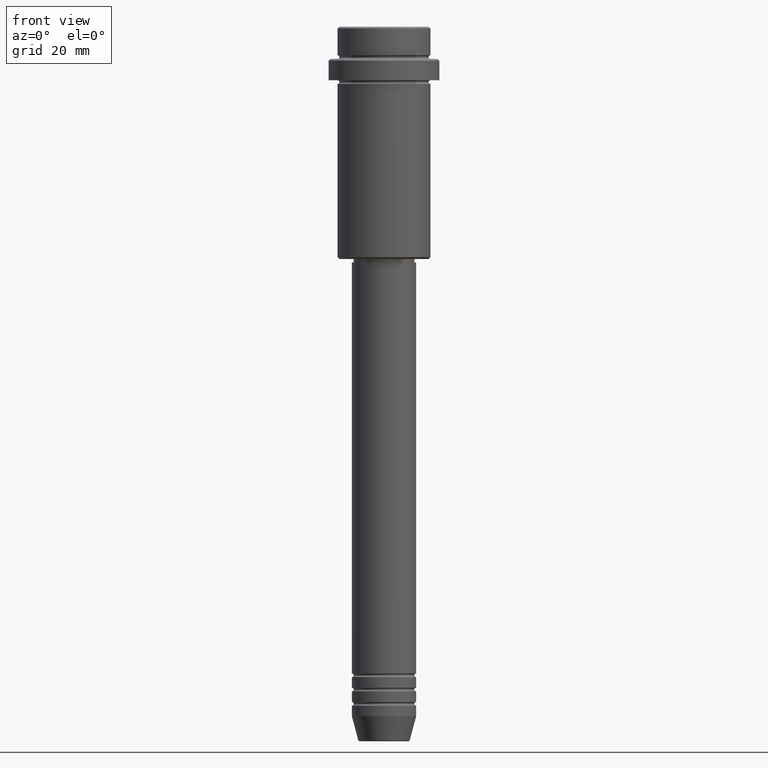
[diagram: clean part render]
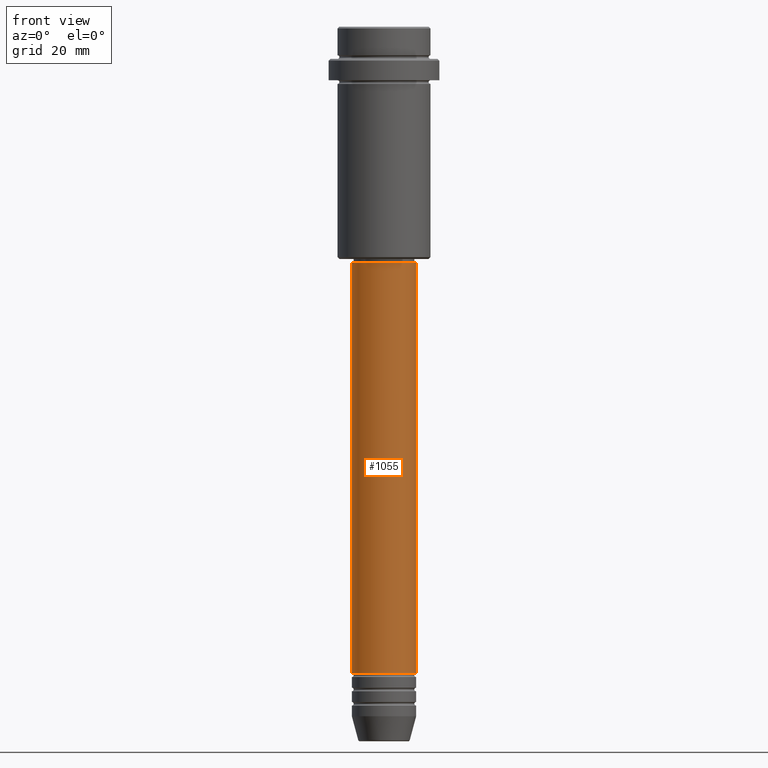
[diagram: same view with one face highlighted and labeled with its STEP entity id]
A machine part, front view. The second image highlights one B-rep face of the part: STEP entity #1055.
In plain terms, the highlighted cylindrical surface (edge-blend (fillet) strip) has radius 9 mm, axis along (-0, -0, 1).
Its self-contained STEP definition (entity closure, byte-faithful):
#7 = EDGE_CURVE ( 'NONE', #1041, #1180, #184, .T. ) ;
#162 = VECTOR ( 'NONE', #1054, 1000.000000000000000 ) ;
#184 = CIRCLE ( 'NONE', #966, 9.000000000000000000 ) ;
#194 = CYLINDRICAL_SURFACE ( 'NONE', #757, 9.000000000000001776 ) ;
#236 = EDGE_LOOP ( 'NONE', ( #1174, #879, #696, #447 ) ) ;
#284 = CARTESIAN_POINT ( 'NONE',  ( 0.000000000000000000, 0.000000000000000000, -180.9999999999999147 ) ) ;
#447 = ORIENTED_EDGE ( 'NONE', *, *, #1372, .F. ) ;
#485 = AXIS2_PLACEMENT_3D ( 'NONE', #974, #534, #647 ) ;
#510 = VERTEX_POINT ( 'NONE', #514 ) ;
#514 = CARTESIAN_POINT ( 'NONE',  ( 9.000000000000001776, 0.000000000000000000, -66.00000000000000000 ) ) ;
#534 = DIRECTION ( 'NONE',  ( -0.000000000000000000, -0.000000000000000000, 1.000000000000000000 ) ) ;
#617 = DIRECTION ( 'NONE',  ( 1.000000000000000000, 0.000000000000000000, 0.000000000000000000 ) ) ;
#632 = CARTESIAN_POINT ( 'NONE',  ( 0.000000000000000000, 0.000000000000000000, 0.000000000000000000 ) ) ;
#646 = CIRCLE ( 'NONE', #485, 9.000000000000001776 ) ;
#647 = DIRECTION ( 'NONE',  ( 1.000000000000000000, 0.000000000000000000, 0.000000000000000000 ) ) ;
#658 = LINE ( 'NONE', #1184, #1337 ) ;
#696 = ORIENTED_EDGE ( 'NONE', *, *, #1014, .T. ) ;
#721 = DIRECTION ( 'NONE',  ( -0.000000000000000000, -0.000000000000000000, 1.000000000000000000 ) ) ;
#725 = DIRECTION ( 'NONE',  ( 1.000000000000000000, 0.000000000000000000, 0.000000000000000000 ) ) ;
#750 = CARTESIAN_POINT ( 'NONE',  ( 9.000000000000001776, 0.000000000000000000, 0.000000000000000000 ) ) ;
#757 = AXIS2_PLACEMENT_3D ( 'NONE', #632, #1254, #725 ) ;
#768 = VERTEX_POINT ( 'NONE', #886 ) ;
#772 = CARTESIAN_POINT ( 'NONE',  ( 9.000000000000000000, 0.000000000000000000, -180.9999999999999147 ) ) ;
#855 = CARTESIAN_POINT ( 'NONE',  ( -9.000000000000000000, 1.102182119232617714E-15, -180.9999999999999147 ) ) ;
#879 = ORIENTED_EDGE ( 'NONE', *, *, #7, .T. ) ;
#886 = CARTESIAN_POINT ( 'NONE',  ( -9.000000000000001776, 1.102182119232617911E-15, -66.00000000000000000 ) ) ;
#951 = LINE ( 'NONE', #750, #162 ) ;
#962 = DIRECTION ( 'NONE',  ( -0.000000000000000000, -0.000000000000000000, 1.000000000000000000 ) ) ;
#966 = AXIS2_PLACEMENT_3D ( 'NONE', #284, #721, #617 ) ;
#974 = CARTESIAN_POINT ( 'NONE',  ( 0.000000000000000000, 0.000000000000000000, -66.00000000000000000 ) ) ;
#1014 = EDGE_CURVE ( 'NONE', #1180, #510, #951, .T. ) ;
#1041 = VERTEX_POINT ( 'NONE', #855 ) ;
#1054 = DIRECTION ( 'NONE',  ( -0.000000000000000000, -0.000000000000000000, 1.000000000000000000 ) ) ;
#1055 = ADVANCED_FACE ( 'NONE', ( #1156 ), #194, .T. ) ;
#1156 = FACE_OUTER_BOUND ( 'NONE', #236, .T. ) ;
#1174 = ORIENTED_EDGE ( 'NONE', *, *, #1392, .F. ) ;
#1180 = VERTEX_POINT ( 'NONE', #772 ) ;
#1184 = CARTESIAN_POINT ( 'NONE',  ( -9.000000000000001776, 1.102182119232617911E-15, 0.000000000000000000 ) ) ;
#1254 = DIRECTION ( 'NONE',  ( -0.000000000000000000, -0.000000000000000000, 1.000000000000000000 ) ) ;
#1337 = VECTOR ( 'NONE', #962, 1000.000000000000000 ) ;
#1372 = EDGE_CURVE ( 'NONE', #768, #510, #646, .T. ) ;
#1392 = EDGE_CURVE ( 'NONE', #1041, #768, #658, .T. ) ;